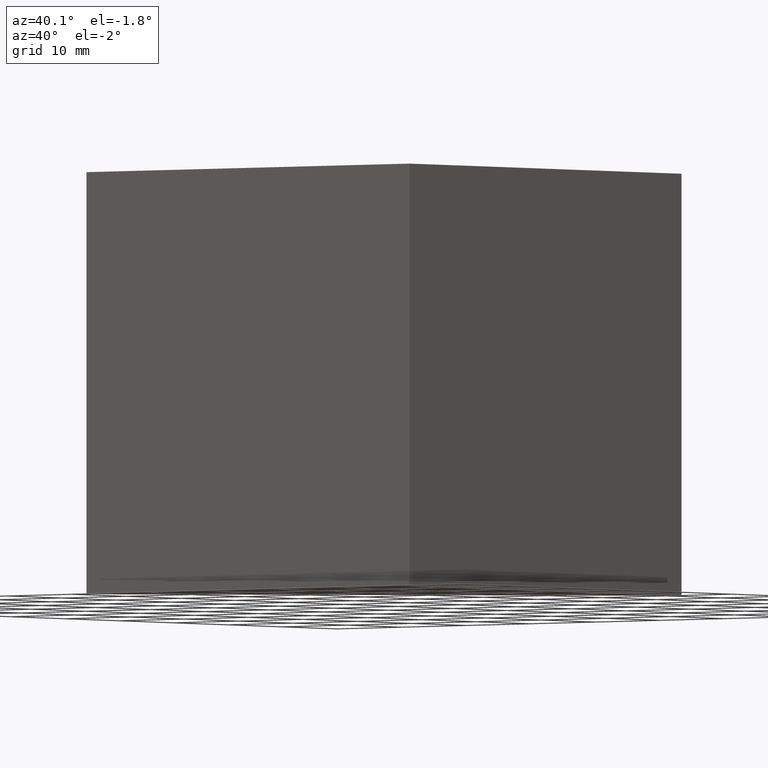
[diagram: clean part render]
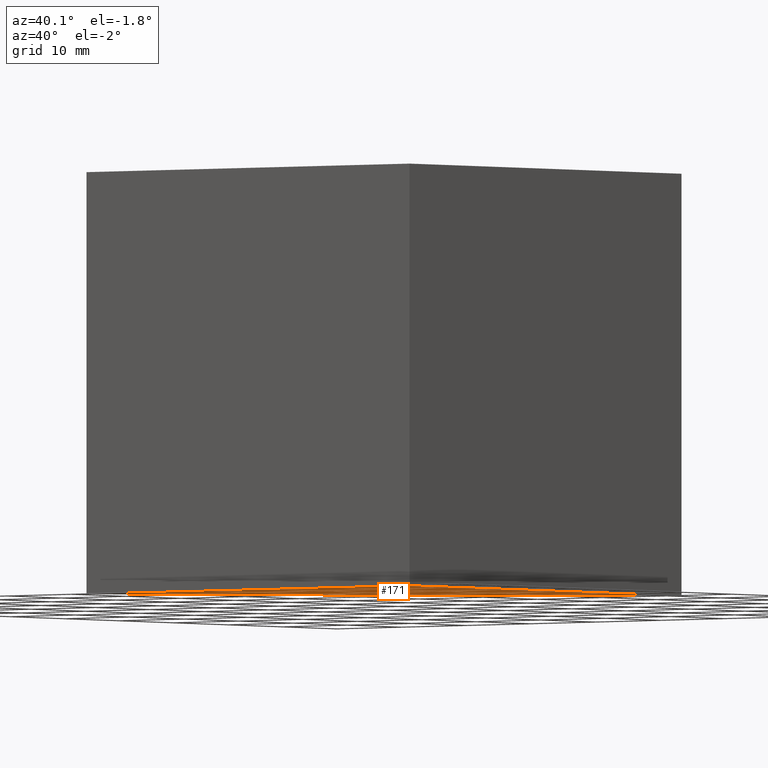
[diagram: same view with one face highlighted and labeled with its STEP entity id]
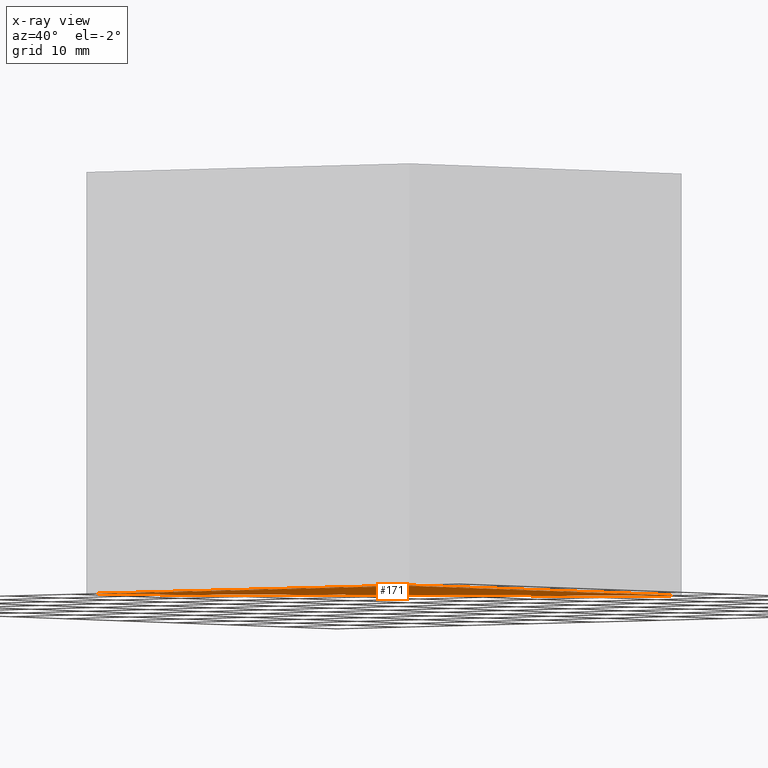
[diagram: x-ray of the same camera — body ghosted, the highlighted face saturated]
A machine part, auxiliary view. The second image highlights one B-rep face of the part: STEP entity #171.
The next image is the same camera in x-ray: the body ghosted, the highlighted face saturated — about 0% of this face is hidden behind the body in this view.
In plain terms, the highlighted planar face has unit normal (0, 0, -1).
Its self-contained STEP definition (entity closure, byte-faithful):
#3 = AXIS2_PLACEMENT_3D ( 'NONE', #7, #31, #127 ) ;
#4 = VERTEX_POINT ( 'NONE', #194 ) ;
#7 = CARTESIAN_POINT ( 'NONE',  ( 0.0000000000000000000, 0.0000000000000000000, 0.0000000000000000000 ) ) ;
#11 = VERTEX_POINT ( 'NONE', #81 ) ;
#26 = FACE_OUTER_BOUND ( 'NONE', #104, .T. ) ;
#31 = DIRECTION ( 'NONE',  ( 0.0000000000000000000, 0.0000000000000000000, -1.000000000000000000 ) ) ;
#81 = CARTESIAN_POINT ( 'NONE',  ( 174.7140637109057500, 132.7790702403060500, 0.0000000000000000000 ) ) ;
#83 = LINE ( 'NONE', #221, #256 ) ;
#87 = DIRECTION ( 'NONE',  ( -1.000000000000000000, 0.0000000000000000000, 0.0000000000000000000 ) ) ;
#90 = VECTOR ( 'NONE', #246, 1000.000000000000000 ) ;
#97 = LINE ( 'NONE', #271, #149 ) ;
#100 = ORIENTED_EDGE ( 'NONE', *, *, #167, .T. ) ;
#103 = CARTESIAN_POINT ( 'NONE',  ( 124.7140637109057500, 132.7790702403060500, 0.0000000000000000000 ) ) ;
#104 = EDGE_LOOP ( 'NONE', ( #118, #100, #215 ) ) ;
#105 = EDGE_CURVE ( 'NONE', #11, #200, #97, .T. ) ;
#118 = ORIENTED_EDGE ( 'NONE', *, *, #229, .T. ) ;
#127 = DIRECTION ( 'NONE',  ( -1.000000000000000000, 0.0000000000000000000, -0.0000000000000000000 ) ) ;
#149 = VECTOR ( 'NONE', #267, 1000.000000000000000 ) ;
#151 = CARTESIAN_POINT ( 'NONE',  ( 174.7140637109057500, 182.7790702403060500, 0.0000000000000000000 ) ) ;
#167 = EDGE_CURVE ( 'NONE', #4, #200, #211, .T. ) ;
#171 = ADVANCED_FACE ( 'NONE', ( #26 ), #248, .T. ) ;
#194 = CARTESIAN_POINT ( 'NONE',  ( 124.7140637109057500, 132.7790702403060500, 0.0000000000000000000 ) ) ;
#200 = VERTEX_POINT ( 'NONE', #151 ) ;
#211 = LINE ( 'NONE', #103, #90 ) ;
#215 = ORIENTED_EDGE ( 'NONE', *, *, #105, .F. ) ;
#221 = CARTESIAN_POINT ( 'NONE',  ( 174.7140637109057500, 132.7790702403060500, 0.0000000000000000000 ) ) ;
#229 = EDGE_CURVE ( 'NONE', #11, #4, #83, .T. ) ;
#246 = DIRECTION ( 'NONE',  ( 0.7071067811865474600, 0.7071067811865475700, 0.0000000000000000000 ) ) ;
#248 = PLANE ( 'NONE',  #3 ) ;
#256 = VECTOR ( 'NONE', #87, 1000.000000000000000 ) ;
#267 = DIRECTION ( 'NONE',  ( 0.0000000000000000000, 1.000000000000000000, 0.0000000000000000000 ) ) ;
#271 = CARTESIAN_POINT ( 'NONE',  ( 174.7140637109057500, 132.7790702403060500, 0.0000000000000000000 ) ) ;